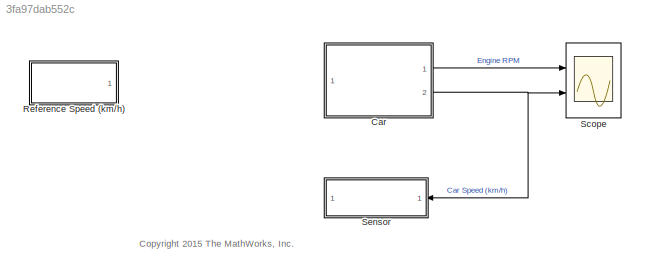
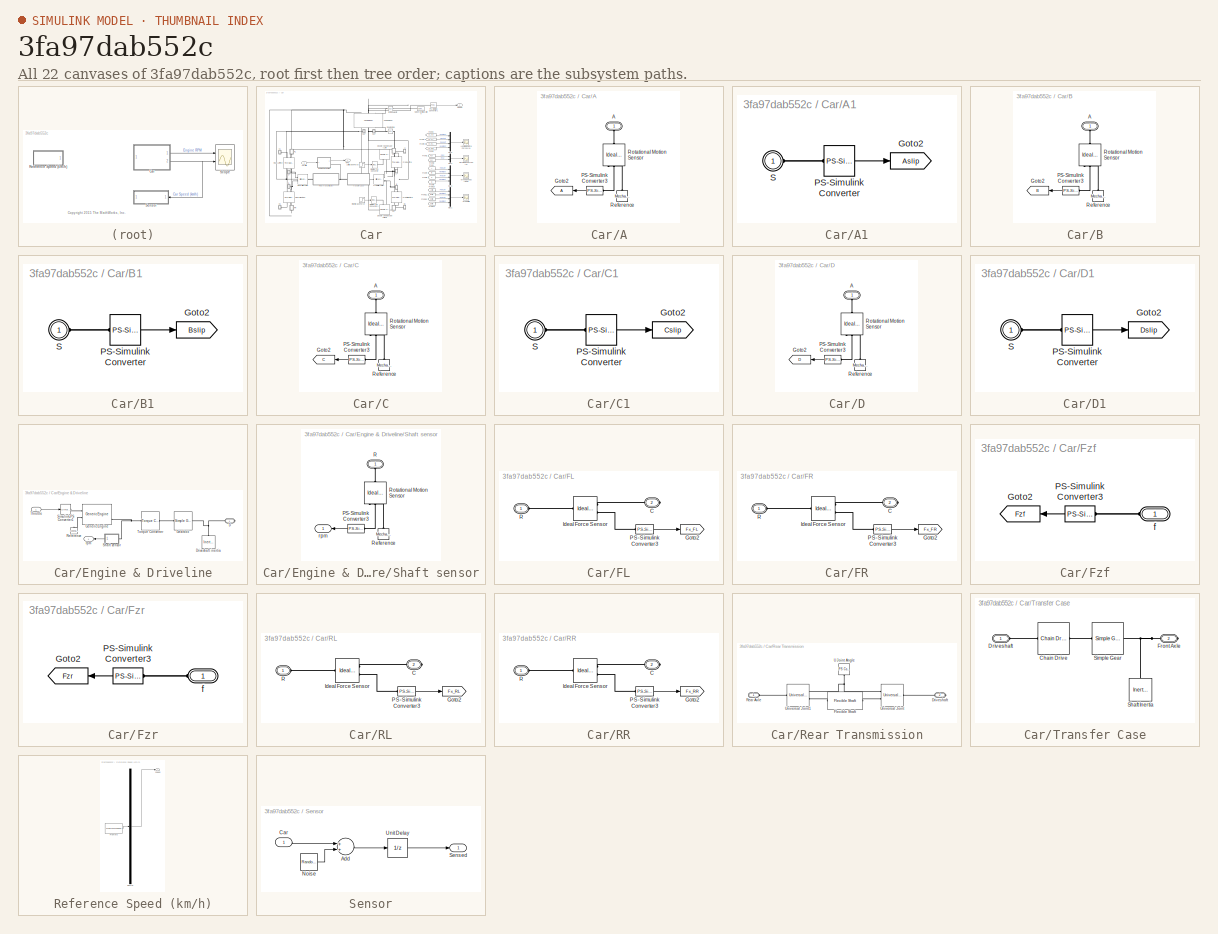
[diagram: thumbnail index - all 22 canvases of the model, root first then tree order]
MODEL slx_3fa97dab552c
KIND model
CONFIG AbsTol = 1e-3
CONFIG FixedStep = auto
CONFIG MaxStep = auto
CONFIG MinStep = auto
CONFIG RelTol = 1e-3
CONFIG SampleTimeConstraint = Unconstrained
CONFIG Solver = ode23t
CONFIG SolverMode = Auto
CONFIG SolverName = ode23t
CONFIG StartTime = 0.0
CONFIG StopTime = 30
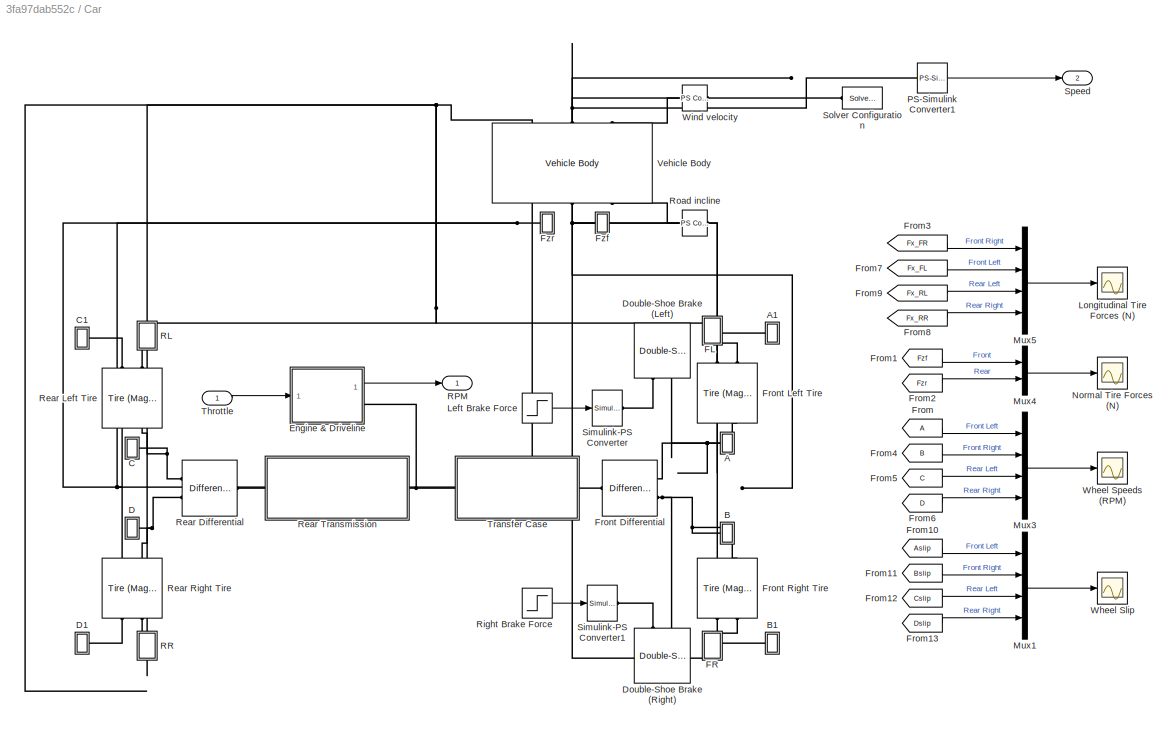
BLOCK [SubSystem] Car
  Ports = [1, 2]
  RequestExecContextInheritance = off
BLOCK [SubSystem] Car/A
  Ports = [0, 0, 0, 0, 0, 1]
  RequestExecContextInheritance = off
BLOCK [PMIOPort] Car/A/A
  Port = 1
  Side = Left
BLOCK [Goto] Car/A/Goto2
  TagVisibility = global
BLOCK [Reference] Car/A/PS-Simulink Converter3  REF=nesl_utility/PS-Simulink
Converter
  AffineConversion = off
  Frequencies = []
  LeftPortType = input
  PhysicalDomain = network_engine_domain
  Ports = [0, 1, 0, 0, 0, 1]
  PseudoPeriodic = off
  RightPortType = output
  SourceBlock = nesl_utility/PS-Simulink\nConverter
  SourceType = PS-Simulink\nConverter
  SubClassName = ps_output
  Unit = rpm
BLOCK [Reference] Car/A/Reference  REF=fl_lib/Mechanical/Rotational Elements/Mechanical
Rotational Reference
  ClassName = reference
  ComponentPath = foundation.mechanical.rotational.reference
  ComponentVariantNames = reference
  ComponentVariants = foundation.mechanical.rotational.reference
  LogSimulationData = off
  Ports = [0, 0, 0, 0, 0, 1]
  SchemaVersion = 1
  SourceBlock = fl_lib/Mechanical/Rotational Elements/Mechanical\nRotational Reference
  SourceFile = foundation.mechanical.rotational.reference
  SourceType = Mechanical\nRotational Reference
BLOCK [Reference] Car/A/Rotational Motion Sensor  REF=fl_lib/Mechanical/Mechanical Sensors/Ideal Rotational
Motion Sensor
  ClassName = angular_velocity
  ComponentPath = foundation.mechanical.sensors.angular_velocity
  ComponentVariantNames = angular_velocity
  ComponentVariants = foundation.mechanical.sensors.angular_velocity
  LogSimulationData = off
  Ports = [0, 0, 0, 0, 0, 1, 3]
  SchemaVersion = 1
  SourceBlock = fl_lib/Mechanical/Mechanical Sensors/Ideal Rotational\nMotion Sensor
  SourceFile = foundation.mechanical.sensors.angular_velocity
  SourceType = Ideal Rotational\nMotion Sensor
  offset = 0
  offset_unit = rad
BLOCK [SubSystem] Car/A1
  Ports = [0, 0, 0, 0, 0, 1]
  RequestExecContextInheritance = off
BLOCK [Goto] Car/A1/Goto2
  GotoTag = Aslip
  TagVisibility = global
BLOCK [Reference] Car/A1/PS-Simulink Converter  REF=nesl_utility/PS-Simulink
Converter
  AffineConversion = off
  Frequencies = []
  LeftPortType = input
  PhysicalDomain = network_engine_domain
  Ports = [0, 1, 0, 0, 0, 1]
  PseudoPeriodic = off
  RightPortType = output
  SourceBlock = nesl_utility/PS-Simulink\nConverter
  SourceType = PS-Simulink\nConverter
  SubClassName = ps_output
  Unit = 1
BLOCK [PMIOPort] Car/A1/S
  Port = 1
  Side = Left
BLOCK [SubSystem] Car/B
  Ports = [0, 0, 0, 0, 0, 1]
  RequestExecContextInheritance = off
BLOCK [PMIOPort] Car/B/A
  Port = 1
  Side = Left
BLOCK [Goto] Car/B/Goto2
  GotoTag = B
  TagVisibility = global
BLOCK [Reference] Car/B/PS-Simulink Converter3  REF=nesl_utility/PS-Simulink
Converter
  AffineConversion = off
  Frequencies = []
  LeftPortType = input
  PhysicalDomain = network_engine_domain
  Ports = [0, 1, 0, 0, 0, 1]
  PseudoPeriodic = off
  RightPortType = output
  SourceBlock = nesl_utility/PS-Simulink\nConverter
  SourceType = PS-Simulink\nConverter
  SubClassName = ps_output
  Unit = rpm
BLOCK [Reference] Car/B/Reference  REF=fl_lib/Mechanical/Rotational Elements/Mechanical
Rotational Reference
  ClassName = reference
  ComponentPath = foundation.mechanical.rotational.reference
  ComponentVariantNames = reference
  ComponentVariants = foundation.mechanical.rotational.reference
  LogSimulationData = off
  Ports = [0, 0, 0, 0, 0, 1]
  SchemaVersion = 1
  SourceBlock = fl_lib/Mechanical/Rotational Elements/Mechanical\nRotational Reference
  SourceFile = foundation.mechanical.rotational.reference
  SourceType = Mechanical\nRotational Reference
BLOCK [Reference] Car/B/Rotational Motion Sensor  REF=fl_lib/Mechanical/Mechanical Sensors/Ideal Rotational
Motion Sensor
  ClassName = angular_velocity
  ComponentPath = foundation.mechanical.sensors.angular_velocity
  ComponentVariantNames = angular_velocity
  ComponentVariants = foundation.mechanical.sensors.angular_velocity
  LogSimulationData = off
  Ports = [0, 0, 0, 0, 0, 1, 3]
  SchemaVersion = 1
  SourceBlock = fl_lib/Mechanical/Mechanical Sensors/Ideal Rotational\nMotion Sensor
  SourceFile = foundation.mechanical.sensors.angular_velocity
  SourceType = Ideal Rotational\nMotion Sensor
  offset = 0
  offset_unit = rad
BLOCK [SubSystem] Car/B1
  Ports = [0, 0, 0, 0, 0, 1]
  RequestExecContextInheritance = off
BLOCK [Goto] Car/B1/Goto2
  GotoTag = Bslip
  TagVisibility = global
BLOCK [Reference] Car/B1/PS-Simulink Converter  REF=nesl_utility/PS-Simulink
Converter
  AffineConversion = off
  Frequencies = []
  LeftPortType = input
  PhysicalDomain = network_engine_domain
  Ports = [0, 1, 0, 0, 0, 1]
  PseudoPeriodic = off
  RightPortType = output
  SourceBlock = nesl_utility/PS-Simulink\nConverter
  SourceType = PS-Simulink\nConverter
  SubClassName = ps_output
  Unit = 1
BLOCK [PMIOPort] Car/B1/S
  Port = 1
  Side = Left
BLOCK [SubSystem] Car/C
  Ports = [0, 0, 0, 0, 0, 1]
  RequestExecContextInheritance = off
BLOCK [PMIOPort] Car/C/A
  Port = 1
  Side = Left
BLOCK [Goto] Car/C/Goto2
  GotoTag = C
  TagVisibility = global
BLOCK [Reference] Car/C/PS-Simulink Converter3  REF=nesl_utility/PS-Simulink
Converter
  AffineConversion = off
  Frequencies = []
  LeftPortType = input
  PhysicalDomain = network_engine_domain
  Ports = [0, 1, 0, 0, 0, 1]
  PseudoPeriodic = off
  RightPortType = output
  SourceBlock = nesl_utility/PS-Simulink\nConverter
  SourceType = PS-Simulink\nConverter
  SubClassName = ps_output
  Unit = rpm
BLOCK [Reference] Car/C/Reference  REF=fl_lib/Mechanical/Rotational Elements/Mechanical
Rotational Reference
  ClassName = reference
  ComponentPath = foundation.mechanical.rotational.reference
  ComponentVariantNames = reference
  ComponentVariants = foundation.mechanical.rotational.reference
  LogSimulationData = off
  Ports = [0, 0, 0, 0, 0, 1]
  SchemaVersion = 1
  SourceBlock = fl_lib/Mechanical/Rotational Elements/Mechanical\nRotational Reference
  SourceFile = foundation.mechanical.rotational.reference
  SourceType = Mechanical\nRotational Reference
BLOCK [Reference] Car/C/Rotational Motion Sensor  REF=fl_lib/Mechanical/Mechanical Sensors/Ideal Rotational
Motion Sensor
  ClassName = angular_velocity
  ComponentPath = foundation.mechanical.sensors.angular_velocity
  ComponentVariantNames = angular_velocity
  ComponentVariants = foundation.mechanical.sensors.angular_velocity
  LogSimulationData = off
  Ports = [0, 0, 0, 0, 0, 1, 3]
  SchemaVersion = 1
  SourceBlock = fl_lib/Mechanical/Mechanical Sensors/Ideal Rotational\nMotion Sensor
  SourceFile = foundation.mechanical.sensors.angular_velocity
  SourceType = Ideal Rotational\nMotion Sensor
  offset = 0
  offset_unit = rad
BLOCK [SubSystem] Car/C1
  Ports = [0, 0, 0, 0, 0, 1]
  RequestExecContextInheritance = off
BLOCK [Goto] Car/C1/Goto2
  GotoTag = Cslip
  TagVisibility = global
BLOCK [Reference] Car/C1/PS-Simulink Converter  REF=nesl_utility/PS-Simulink
Converter
  AffineConversion = off
  Frequencies = []
  LeftPortType = input
  PhysicalDomain = network_engine_domain
  Ports = [0, 1, 0, 0, 0, 1]
  PseudoPeriodic = off
  RightPortType = output
  SourceBlock = nesl_utility/PS-Simulink\nConverter
  SourceType = PS-Simulink\nConverter
  SubClassName = ps_output
  Unit = 1
BLOCK [PMIOPort] Car/C1/S
  Port = 1
  Side = Left
BLOCK [SubSystem] Car/D
  Ports = [0, 0, 0, 0, 0, 1]
  RequestExecContextInheritance = off
BLOCK [PMIOPort] Car/D/A
  Port = 1
  Side = Left
BLOCK [Goto] Car/D/Goto2
  GotoTag = D
  TagVisibility = global
BLOCK [Reference] Car/D/PS-Simulink Converter3  REF=nesl_utility/PS-Simulink
Converter
  AffineConversion = off
  Frequencies = []
  LeftPortType = input
  PhysicalDomain = network_engine_domain
  Ports = [0, 1, 0, 0, 0, 1]
  PseudoPeriodic = off
  RightPortType = output
  SourceBlock = nesl_utility/PS-Simulink\nConverter
  SourceType = PS-Simulink\nConverter
  SubClassName = ps_output
  Unit = rpm
BLOCK [Reference] Car/D/Reference  REF=fl_lib/Mechanical/Rotational Elements/Mechanical
Rotational Reference
  ClassName = reference
  ComponentPath = foundation.mechanical.rotational.reference
  ComponentVariantNames = reference
  ComponentVariants = foundation.mechanical.rotational.reference
  LogSimulationData = off
  Ports = [0, 0, 0, 0, 0, 1]
  SchemaVersion = 1
  SourceBlock = fl_lib/Mechanical/Rotational Elements/Mechanical\nRotational Reference
  SourceFile = foundation.mechanical.rotational.reference
  SourceType = Mechanical\nRotational Reference
BLOCK [Reference] Car/D/Rotational Motion Sensor  REF=fl_lib/Mechanical/Mechanical Sensors/Ideal Rotational
Motion Sensor
  ClassName = angular_velocity
  ComponentPath = foundation.mechanical.sensors.angular_velocity
  ComponentVariantNames = angular_velocity
  ComponentVariants = foundation.mechanical.sensors.angular_velocity
  LogSimulationData = off
  Ports = [0, 0, 0, 0, 0, 1, 3]
  SchemaVersion = 1
  SourceBlock = fl_lib/Mechanical/Mechanical Sensors/Ideal Rotational\nMotion Sensor
  SourceFile = foundation.mechanical.sensors.angular_velocity
  SourceType = Ideal Rotational\nMotion Sensor
  offset = 0
  offset_unit = rad
BLOCK [SubSystem] Car/D1
  Ports = [0, 0, 0, 0, 0, 1]
  RequestExecContextInheritance = off
BLOCK [Goto] Car/D1/Goto2
  GotoTag = Dslip
  TagVisibility = global
BLOCK [Reference] Car/D1/PS-Simulink Converter  REF=nesl_utility/PS-Simulink
Converter
  AffineConversion = off
  Frequencies = []
  LeftPortType = input
  PhysicalDomain = network_engine_domain
  Ports = [0, 1, 0, 0, 0, 1]
  PseudoPeriodic = off
  RightPortType = output
  SourceBlock = nesl_utility/PS-Simulink\nConverter
  SourceType = PS-Simulink\nConverter
  SubClassName = ps_output
  Unit = 1
BLOCK [PMIOPort] Car/D1/S
  Port = 1
  Side = Left
BLOCK [Reference] Car/Double-Shoe Brake (Left)  REF=sdl_lib/Brakes & Detents/Rotational/Double-Shoe Brake
  ClassName = double_shoe_brake
  ComponentPath = sdl.brakes.rotational.double_shoe_brake
  ComponentVariantNames = double_shoe_brake
  ComponentVariants = sdl.brakes.rotational.double_shoe_brake
  LogSimulationData = off
  Ports = [0, 0, 0, 0, 0, 2]
  SchemaVersion = 1
  SourceBlock = sdl_lib/Brakes & Detents/Rotational/Double-Shoe Brake
  SourceFile = sdl.brakes.rotational.double_shoe_brake
  SourceType = Double-Shoe Brake
  mu = 0.3
  mu_unit = 1
  mu_visc = .01
  mu_visc_unit = N*m/(rad/s)
  r_act = 150
  r_act_unit = mm
  r_drum = 200
  r_drum_unit = mm
  r_pin = 125
  r_pin_unit = mm
  theta_0 = 5
  theta_0_unit = deg
  theta_pin = 15
  theta_pin_unit = deg
  theta_shoe = 120
  theta_shoe_unit = deg
  w_thr = 0.01
  w_thr_unit = rad/s
BLOCK [Reference] Car/Double-Shoe Brake (Right)  REF=sdl_lib/Brakes & Detents/Rotational/Double-Shoe Brake
  ClassName = double_shoe_brake
  ComponentPath = sdl.brakes.rotational.double_shoe_brake
  ComponentVariantNames = double_shoe_brake
  ComponentVariants = sdl.brakes.rotational.double_shoe_brake
  LogSimulationData = off
  Ports = [0, 0, 0, 0, 0, 2]
  SchemaVersion = 1
  SourceBlock = sdl_lib/Brakes & Detents/Rotational/Double-Shoe Brake
  SourceFile = sdl.brakes.rotational.double_shoe_brake
  SourceType = Double-Shoe Brake
  mu = 0.3
  mu_unit = 1
  mu_visc = .01
  mu_visc_unit = N*m/(rad/s)
  r_act = 150
  r_act_unit = mm
  r_drum = 200
  r_drum_unit = mm
  r_pin = 125
  r_pin_unit = mm
  theta_0 = 5
  theta_0_unit = deg
  theta_pin = 15
  theta_pin_unit = deg
  theta_shoe = 120
  theta_shoe_unit = deg
  w_thr = 0.01
  w_thr_unit = rad/s
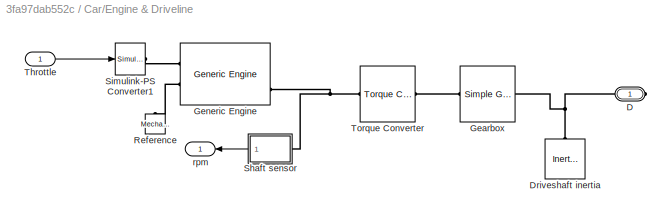
BLOCK [SubSystem] Car/Engine & Driveline
  Ports = [1, 1, 0, 0, 0, 0, 1]
  RequestExecContextInheritance = off
BLOCK [PMIOPort] Car/Engine & Driveline/D
  Port = 1
  Side = Right
BLOCK [Reference] Car/Engine & Driveline/Driveshaft inertia  REF=fl_lib/Mechanical/Rotational Elements/Inertia
  ClassName = inertia
  ComponentPath = foundation.mechanical.rotational.inertia
  ComponentVariantNames = inertia
  ComponentVariants = foundation.mechanical.rotational.inertia
  LogSimulationData = off
  Ports = [0, 0, 0, 0, 0, 1]
  SchemaVersion = 1
  SourceBlock = fl_lib/Mechanical/Rotational Elements/Inertia
  SourceFile = foundation.mechanical.rotational.inertia
  SourceType = Inertia
  inertia = 12
  inertia_unit = kg*m^2
  t = 0
  t_priority = High
  t_specify = off
  t_unit = N*m
  w = 0
  w_priority = High
  w_specify = off
  w_unit = rad/s
BLOCK [Reference] Car/Engine & Driveline/Gearbox  REF=sdl_lib/Gears/Simple Gear
  ClassName = simple_gear
  ComponentPath = sdl.gears.simple_gear
  ComponentVariantNames = No thermal port, Show thermal port
  ComponentVariants = sdl.gears.simple_gear, sdl.gears.simple_gear_th
  LogSimulationData = off
  Ports = [0, 0, 0, 0, 0, 1, 1]
  SchemaVersion = 1
  SourceBlock = sdl_lib/Gears/Simple Gear
  SourceFile = sdl.gears.simple_gear
  SourceType = Simple Gear
  T_init = 300
  T_init_unit = K
  T_noload = 0.1
  T_noload_unit = N*m
  T_nom = 5
  T_nom_unit = N*m
  efficiency = 0.8
  efficiency_TLU = [ 0.95 0.9 0.85 ]
  efficiency_TLU2 = [ 0.85 0.8 0.75; 0.95 0.9 0.85; 0.85 0.8 0.7 ]
  efficiency_TLU2_unit = 1
  efficiency_TLU_unit = 1
  efficiency_nom = 0.8
  efficiency_nom_unit = 1
  efficiency_unit = 1
  friction_model = 1
  friction_model_unit = 1
  load_TLU = [ 1 5 10 ]
  load_TLU_unit = N*m
  mu_visc = [ 0 0 ]
  mu_visc_unit = N*m/(rad/s)
  ratio = 2
  ratio_unit = 1
  rotation_direction = 1
  rotation_direction_unit = 1
  temperature_TLU = [ 280 300 320 ]
  temperature_TLU_unit = K
  thermal_mass = 50
  thermal_mass_unit = J/K
  w_thr = 0.01
  w_thr_unit = rad/s
BLOCK [Reference] Car/Engine & Driveline/Generic Engine  REF=sdl_lib/Engines/Generic Engine
  ClassName = generic_engine
  ComponentPath = sdl.engines.generic_engine
  ComponentVariantNames = generic_engine
  ComponentVariants = sdl.engines.generic_engine
  LogSimulationData = off
  P_max = 150e3
  P_max_unit = W
  Ports = [0, 0, 0, 0, 0, 2, 3]
  SchemaVersion = 1
  SourceBlock = sdl_lib/Engines/Generic Engine
  SourceFile = sdl.engines.generic_engine
  SourceType = Generic Engine
  T0 = 0
  T0_unit = 1
  bmep_tab = [ 0 250 500 625 750 1000 1.15e+3 1.25e+3 ]
  bmep_tab_unit = kPa
  bsfc_tab = [ 410 380 300 280 270 290 320 380; 410 370 290 270 260 270 285 320; 415 380 290 275 265 270 270 300; 420 390 310 290 285 280 280 285; 430 410 340 320 310 300 310 320; 450 430 370 340 330 330 350 380 ]
  bsfc_tab_unit = g/hr/kW
  displaced_volume = 400
  displaced_volume_unit = cm^3
  engine_type = 1
  engine_type_unit = 1
  fc_interp_method = 1
  fc_interp_method_unit = 1
  fc_model = 1
  fc_model_unit = 1
  fc_per_rev = 25
  fc_per_rev_unit = mg/rev
  fc_tab = [ 0.5 0.9 1.4 1.6 1.9 2.7 3.4 4.4; 1 1.7 2.7 3.1 3.6 5 6 7.4; 1.4 2.7 4 4.8 5.6 7.5 8.5 10.5; 2 3.6 5.8 6.7 8 10.4 11.7 13.3; 2.5 4.8 7.9 9.4 10.8 14 16.2 18.6; 3.1 6 10.3 11.9 13.8 18.4 22 26.5 ]
  fc_tab_unit = g/s
  fc_trq_tab = [ 0 80 160 200 240 320 360 400 ]
  fc_trq_tab_unit = N*m
  fc_w_tab = [ 1000 2e+3 3e+3 4e+3 5e+3 6e+3 ]
  fc_w_tab_unit = rpm
  idle_speed = 0
  idle_speed_reference = 1000
  idle_speed_reference_unit = rpm
  idle_speed_unit = 1
  idle_w_thr = 1
  idle_w_thr_unit = rpm
  inertia = 0.2
  inertia_unit = kg*m^2
  initial_velocity = 800
  initial_velocity_unit = rpm
  interp_method = 1
  interp_method_unit = 1
  model_inertia = 1
  model_inertia_unit = 1
  model_parameterization = 1
  model_parameterization_unit = 1
  model_time_constant = 0
  model_time_constant_unit = 1
  pwr_tab = [ 2e+4 4e+4 7.8e+4 1.2e+5 1.45e+5 1.48e+5 1.25e+5 6e+4 ]
  pwr_tab_unit = W
  rev_per_cycle = 2
  rev_per_cycle_unit = 1
  tau_controller = 1
  tau_controller_unit = s
  time_constant = 0.2
  time_constant_unit = s
  trq_tab = [ 380 380 380 380 350 280 200 80 ]
  trq_tab_unit = N*m
  w_P_max = 4500
  w_P_max_unit = rpm
  w_max = 6000
  w_max_unit = rpm
  w_min = 500
  w_min_unit = rpm
  w_tab = [ 500 1000 2e+3 3e+3 4e+3 5e+3 6e+3 7e+3 ]
  w_tab_unit = rpm
  w_thr = 100
  w_thr_unit = rpm
BLOCK [Reference] Car/Engine & Driveline/Reference  REF=fl_lib/Mechanical/Rotational Elements/Mechanical
Rotational Reference
  ClassName = reference
  ComponentPath = foundation.mechanical.rotational.reference
  ComponentVariantNames = reference
  ComponentVariants = foundation.mechanical.rotational.reference
  LogSimulationData = off
  Ports = [0, 0, 0, 0, 0, 1]
  SchemaVersion = 1
  SourceBlock = fl_lib/Mechanical/Rotational Elements/Mechanical\nRotational Reference
  SourceFile = foundation.mechanical.rotational.reference
  SourceType = Mechanical\nRotational Reference
BLOCK [SubSystem] Car/Engine & Driveline/Shaft sensor
  Ports = [0, 1, 0, 0, 0, 1]
  RequestExecContextInheritance = off
BLOCK [Reference] Car/Engine & Driveline/Shaft sensor/PS-Simulink Converter3  REF=nesl_utility/PS-Simulink
Converter
  AffineConversion = off
  Frequencies = []
  LeftPortType = input
  PhysicalDomain = network_engine_domain
  Ports = [0, 1, 0, 0, 0, 1]
  PseudoPeriodic = off
  RightPortType = output
  SourceBlock = nesl_utility/PS-Simulink\nConverter
  SourceType = PS-Simulink\nConverter
  SubClassName = ps_output
  Unit = rpm
BLOCK [PMIOPort] Car/Engine & Driveline/Shaft sensor/R
  Port = 1
  Side = Left
BLOCK [Reference] Car/Engine & Driveline/Shaft sensor/Reference  REF=fl_lib/Mechanical/Rotational Elements/Mechanical
Rotational Reference
  ClassName = reference
  ComponentPath = foundation.mechanical.rotational.reference
  ComponentVariantNames = reference
  ComponentVariants = foundation.mechanical.rotational.reference
  LogSimulationData = off
  Ports = [0, 0, 0, 0, 0, 1]
  SchemaVersion = 1
  SourceBlock = fl_lib/Mechanical/Rotational Elements/Mechanical\nRotational Reference
  SourceFile = foundation.mechanical.rotational.reference
  SourceType = Mechanical\nRotational Reference
BLOCK [Reference] Car/Engine & Driveline/Shaft sensor/Rotational Motion Sensor  REF=fl_lib/Mechanical/Mechanical Sensors/Ideal Rotational
Motion Sensor
  ClassName = angular_velocity
  ComponentPath = foundation.mechanical.sensors.angular_velocity
  ComponentVariantNames = angular_velocity
  ComponentVariants = foundation.mechanical.sensors.angular_velocity
  LogSimulationData = off
  Ports = [0, 0, 0, 0, 0, 1, 3]
  SchemaVersion = 1
  SourceBlock = fl_lib/Mechanical/Mechanical Sensors/Ideal Rotational\nMotion Sensor
  SourceFile = foundation.mechanical.sensors.angular_velocity
  SourceType = Ideal Rotational\nMotion Sensor
  offset = 0
  offset_unit = rad
BLOCK [Outport] Car/Engine & Driveline/Shaft sensor/rpm
  IconDisplay = Port number
BLOCK [Reference] Car/Engine & Driveline/Simulink-PS Converter1  REF=nesl_utility/Simulink-PS
Converter
  AffineConversion = off
  Frequencies = []
  InputFilterTimeConstant = .001
  InputFiltering = off
  LeftPortType = input
  NoiseDistribution = none
  NoiseParameters = []
  PhysicalDomain = network_engine_domain
  Ports = [1, 0, 0, 0, 0, 0, 1]
  PseudoPeriodic = off
  RightPortType = output
  SimscapeFilterOrder = 1
  SourceBlock = nesl_utility/Simulink-PS\nConverter
  SourceType = Simulink-PS\nConverter
  SubClassName = ps_input
  UdotUserProvided = 0
  Unit = 1
BLOCK [Inport] Car/Engine & Driveline/Throttle
  IconDisplay = Port number
BLOCK [Reference] Car/Engine & Driveline/Torque Converter  REF=sdl_lib/Couplings & Drives/Torque Converter
  ClassName = torque_converter
  ComponentPath = sdl.couplings.torque_converter
  ComponentVariantNames = torque_converter
  ComponentVariants = sdl.couplings.torque_converter
  LogSimulationData = off
  Ports = [0, 0, 0, 0, 0, 1, 1]
  SchemaVersion = 1
  SourceBlock = sdl_lib/Couplings & Drives/Torque Converter
  SourceFile = sdl.couplings.torque_converter
  SourceType = Torque Converter
  cf_vector = [12.2938 12.8588 13.1452 13.6285 14.6163 16.2675 19.3503 22.1046 29.9986 50.00]
  cf_vector_parameterization = 1
  cf_vector_parameterization_unit = 1
  cf_vector_reference_speed = 1
  cf_vector_reference_speed_unit = 1
  cf_vector_sq = 1e-3*[ 6.616 6.048 5.787 5.384 4.681 3.779 2.671 2.047 1.111 0.400]
  cf_vector_sq_unit = N*m/(rad/s)^2
  cf_vector_unit = (rad/s)/(N*m)^0.5
  extrap_method = 1
  extrap_method_unit = 1
  initial_trq_ratio = 0
  initial_trq_ratio_unit = 1
  interp_method = 1
  interp_method_unit = 1
  model_lag = 0
  model_lag_unit = 1
  n_vector = [0 0.50 0.60 0.70 0.80 0.87 0.92 0.94 0.96 0.97]
  n_vector_unit = 1
  tau = 0.02
  tau_unit = s
  trq_vector = [2.2320 1.5462 1.4058 1.2746 1.1528 1.0732 1.0192 0.9983 0.9983 0.9983]
  trq_vector_unit = 1
BLOCK [Outport] Car/Engine & Driveline/rpm
  IconDisplay = Port number
BLOCK [SubSystem] Car/FL
  Ports = [0, 0, 0, 0, 0, 1, 1]
  RequestExecContextInheritance = off
BLOCK [PMIOPort] Car/FL/C
  Port = 2
  Side = Right
BLOCK [Goto] Car/FL/Goto2
  GotoTag = Fx_FL
  TagVisibility = global
BLOCK [Reference] Car/FL/Ideal Force Sensor  REF=fl_lib/Mechanical/Mechanical Sensors/Ideal Force Sensor
  ClassName = force
  ComponentPath = foundation.mechanical.sensors.force
  ComponentVariantNames = force
  ComponentVariants = foundation.mechanical.sensors.force
  LogSimulationData = off
  Ports = [0, 0, 0, 0, 0, 1, 2]
  SchemaVersion = 1
  SourceBlock = fl_lib/Mechanical/Mechanical Sensors/Ideal Force Sensor
  SourceFile = foundation.mechanical.sensors.force
  SourceType = Ideal Force Sensor
BLOCK [Reference] Car/FL/PS-Simulink Converter3  REF=nesl_utility/PS-Simulink
Converter
  AffineConversion = off
  Frequencies = []
  LeftPortType = input
  PhysicalDomain = network_engine_domain
  Ports = [0, 1, 0, 0, 0, 1]
  PseudoPeriodic = off
  RightPortType = output
  SourceBlock = nesl_utility/PS-Simulink\nConverter
  SourceType = PS-Simulink\nConverter
  SubClassName = ps_output
  Unit = N
BLOCK [PMIOPort] Car/FL/R
  Port = 1
  Side = Left
BLOCK [SubSystem] Car/FR
  Ports = [0, 0, 0, 0, 0, 1, 1]
  RequestExecContextInheritance = off
BLOCK [PMIOPort] Car/FR/C
  Port = 2
  Side = Right
BLOCK [Goto] Car/FR/Goto2
  GotoTag = Fx_FR
  TagVisibility = global
BLOCK [Reference] Car/FR/Ideal Force Sensor  REF=fl_lib/Mechanical/Mechanical Sensors/Ideal Force Sensor
  ClassName = force
  ComponentPath = foundation.mechanical.sensors.force
  ComponentVariantNames = force
  ComponentVariants = foundation.mechanical.sensors.force
  LogSimulationData = off
  Ports = [0, 0, 0, 0, 0, 1, 2]
  SchemaVersion = 1
  SourceBlock = fl_lib/Mechanical/Mechanical Sensors/Ideal Force Sensor
  SourceFile = foundation.mechanical.sensors.force
  SourceType = Ideal Force Sensor
BLOCK [Reference] Car/FR/PS-Simulink Converter3  REF=nesl_utility/PS-Simulink
Converter
  AffineConversion = off
  Frequencies = []
  LeftPortType = input
  PhysicalDomain = network_engine_domain
  Ports = [0, 1, 0, 0, 0, 1]
  PseudoPeriodic = off
  RightPortType = output
  SourceBlock = nesl_utility/PS-Simulink\nConverter
  SourceType = PS-Simulink\nConverter
  SubClassName = ps_output
  Unit = N
BLOCK [PMIOPort] Car/FR/R
  Port = 1
  Side = Left
BLOCK [From] Car/From
  CloseFcn = tagdialog Close
  TagVisibility = global
BLOCK [From] Car/From1
  CloseFcn = tagdialog Close
  GotoTag = Fzf
  TagVisibility = global
BLOCK [From] Car/From10
  CloseFcn = tagdialog Close
  GotoTag = Aslip
  TagVisibility = global
BLOCK [From] Car/From11
  CloseFcn = tagdialog Close
  GotoTag = Bslip
  TagVisibility = global
BLOCK [From] Car/From12
  CloseFcn = tagdialog Close
  GotoTag = Cslip
  TagVisibility = global
BLOCK [From] Car/From13
  CloseFcn = tagdialog Close
  GotoTag = Dslip
  TagVisibility = global
BLOCK [From] Car/From2
  CloseFcn = tagdialog Close
  GotoTag = Fzr
  TagVisibility = global
BLOCK [From] Car/From3
  CloseFcn = tagdialog Close
  GotoTag = Fx_FR
  TagVisibility = global
BLOCK [From] Car/From4
  CloseFcn = tagdialog Close
  GotoTag = B
  TagVisibility = global
BLOCK [From] Car/From5
  CloseFcn = tagdialog Close
  GotoTag = C
  TagVisibility = global
BLOCK [From] Car/From6
  CloseFcn = tagdialog Close
  GotoTag = D
  TagVisibility = global
BLOCK [From] Car/From7
  CloseFcn = tagdialog Close
  GotoTag = Fx_FL
  TagVisibility = global
BLOCK [From] Car/From8
  CloseFcn = tagdialog Close
  GotoTag = Fx_RR
  TagVisibility = global
BLOCK [From] Car/From9
  CloseFcn = tagdialog Close
  GotoTag = Fx_RL
  TagVisibility = global
BLOCK [Reference] Car/Front Differential  REF=sdl_lib/Gears/Differential
  ClassName = differential
  ComponentPath = sdl.gears.differential
  ComponentVariantNames = No thermal port, Show thermal port
  ComponentVariants = sdl.gears.differential, sdl.gears.differential_th
  LogSimulationData = off
  Ports = [0, 0, 0, 0, 0, 1, 2]
  SchemaVersion = 1
  SourceBlock = sdl_lib/Gears/Differential
  SourceFile = sdl.gears.differential
  SourceType = Differential
  T_init = 300
  T_init_unit = K
  cd_ratio = 4
  cd_ratio_unit = 1
  driveshaft_location = 2
  driveshaft_location_unit = 1
  efficiency = [ 0.85 0.92 ]
  efficiency_cd_TLU = [ 0.95 0.9 0.85 ]
  efficiency_cd_TLU_unit = 1
  efficiency_ss_TLU = [ 0.95 0.9 0.85 ]
  efficiency_ss_TLU_unit = 1
  efficiency_unit = 1
  friction_model = 1
  friction_model_unit = 1
  mu_visc = [ 0 0 ]
  mu_visc_unit = N*m/(rad/s)
  temperature_TLU = [ 280 300 320 ]
  temperature_TLU_unit = K
  thermal_mass = 50
  thermal_mass_unit = J/K
  w_thr = [ 0.01 0.01 ]
  w_thr_unit = rad/s
BLOCK [Reference] Car/Front Left Tire  REF=sdl_lib/Tires & Vehicles/Tire (Magic Formula)
  B_m = 10
  B_m_unit = 1
  C_m = 1.9
  C_m_unit = 1
  ClassName = tire_magic
  ComponentPath = sdl.tires.tire_magic
  ComponentVariantNames = tire_magic
  ComponentVariants = sdl.tires.tire_magic
  D_m = 1
  D_m_unit = 1
  E_m = 0.97
  E_m_unit = 1
  F_x1 = 3500
  F_x1_unit = N
  F_z1 = 3000
  F_z1_unit = N
  LogSimulationData = off
  Ports = [0, 0, 0, 0, 0, 2, 2]
  SchemaVersion = 1
  SourceBlock = sdl_lib/Tires & Vehicles/Tire (Magic Formula)
  SourceFile = sdl.tires.tire_magic
  SourceType = Tire (Magic Formula)
  alpha = -0.003
  alpha_unit = 1
  beta = 0.97
  beta_unit = 1
  coeff = 0.015
  coeff_a = 84e-4
  coeff_a_unit = 1
  coeff_b = 6.2e-4
  coeff_b_unit = s/m
  coeff_c = 1.6e-4
  coeff_c_unit = s^2/m^2
  coeff_unit = 1
  damping = 1000
  damping_unit = N/(m/s)
  fz0 = 4e+3
  fz0_unit = N
  inertia = 4.129
  inertia_unit = kg*m^2
  initial_velocity = 0
  initial_velocity_unit = rpm
  kappa1 = 10
  kappa1_unit = 1
  model_compliance = 1
  model_compliance_unit = 1
  model_inertia = 1
  model_inertia_unit = 1
  model_resistance = 1
  model_resistance_unit = 1
  p_Cx = 1.685
  p_Cx_unit = 1
  p_Dx = [ 1.21 -0.037 ]
  p_Dx_unit = 1
  p_Ex = [ 0.344 0.095 -0.02 0 ]
  p_Ex_unit = 1
  p_Hx = [ -0.002 0.002 ]
  p_Hx_unit = 1
  p_Kx = [ 21.51 -0.163 0.245 ]
  p_Kx_unit = 1
  p_Vx = [ 0 0 ]
  p_Vx_unit = 1
  p_tire = 250e3
  p_tire_unit = Pa
  parameterization = 1
  parameterization_unit = 1
  r_e = 16*2.54/100
  r_e_unit = m
  resistance_model = 1
  resistance_model_unit = 1
  stiffness = 200000
  stiffness_unit = N/m
  v_thr = 1e-3
  v_thr_unit = m/s
  v_tr_thr = 0.1
  v_tr_thr_unit = m/s
BLOCK [Reference] Car/Front Right Tire  REF=sdl_lib/Tires & Vehicles/Tire (Magic Formula)
  B_m = 10
  B_m_unit = 1
  C_m = 1.9
  C_m_unit = 1
  ClassName = tire_magic
  ComponentPath = sdl.tires.tire_magic
  ComponentVariantNames = tire_magic
  ComponentVariants = sdl.tires.tire_magic
  D_m = 1
  D_m_unit = 1
  E_m = 0.97
  E_m_unit = 1
  F_x1 = 3500
  F_x1_unit = N
  F_z1 = 3000
  F_z1_unit = N
  LogSimulationData = off
  Ports = [0, 0, 0, 0, 0, 2, 2]
  SchemaVersion = 1
  SourceBlock = sdl_lib/Tires & Vehicles/Tire (Magic Formula)
  SourceFile = sdl.tires.tire_magic
  SourceType = Tire (Magic Formula)
  alpha = -0.003
  alpha_unit = 1
  beta = 0.97
  beta_unit = 1
  coeff = 0.015
  coeff_a = 84e-4
  coeff_a_unit = 1
  coeff_b = 6.2e-4
  coeff_b_unit = s/m
  coeff_c = 1.6e-4
  coeff_c_unit = s^2/m^2
  coeff_unit = 1
  damping = 1000
  damping_unit = N/(m/s)
  fz0 = 4e+3
  fz0_unit = N
  inertia = 4.129
  inertia_unit = kg*m^2
  initial_velocity = 0
  initial_velocity_unit = rpm
  kappa1 = 10
  kappa1_unit = 1
  model_compliance = 1
  model_compliance_unit = 1
  model_inertia = 1
  model_inertia_unit = 1
  model_resistance = 1
  model_resistance_unit = 1
  p_Cx = 1.685
  p_Cx_unit = 1
  p_Dx = [ 1.21 -0.037 ]
  p_Dx_unit = 1
  p_Ex = [ 0.344 0.095 -0.02 0 ]
  p_Ex_unit = 1
  p_Hx = [ -0.002 0.002 ]
  p_Hx_unit = 1
  p_Kx = [ 21.51 -0.163 0.245 ]
  p_Kx_unit = 1
  p_Vx = [ 0 0 ]
  p_Vx_unit = 1
  p_tire = 250e3
  p_tire_unit = Pa
  parameterization = 1
  parameterization_unit = 1
  r_e = 16*2.54/100
  r_e_unit = m
  resistance_model = 1
  resistance_model_unit = 1
  stiffness = 200000
  stiffness_unit = N/m
  v_thr = 1e-3
  v_thr_unit = m/s
  v_tr_thr = 0.1
  v_tr_thr_unit = m/s
BLOCK [SubSystem] Car/Fzf
  Ports = [0, 0, 0, 0, 0, 1]
  RequestExecContextInheritance = off
BLOCK [Goto] Car/Fzf/Goto2
  GotoTag = Fzf
  TagVisibility = global
BLOCK [Reference] Car/Fzf/PS-Simulink Converter3  REF=nesl_utility/PS-Simulink
Converter
  AffineConversion = off
  Frequencies = []
  LeftPortType = input
  PhysicalDomain = network_engine_domain
  Ports = [0, 1, 0, 0, 0, 1]
  PseudoPeriodic = off
  RightPortType = output
  SourceBlock = nesl_utility/PS-Simulink\nConverter
  SourceType = PS-Simulink\nConverter
  SubClassName = ps_output
  Unit = N
BLOCK [PMIOPort] Car/Fzf/f
  Port = 1
  Side = Left
BLOCK [SubSystem] Car/Fzr
  Ports = [0, 0, 0, 0, 0, 1]
  RequestExecContextInheritance = off
BLOCK [Goto] Car/Fzr/Goto2
  GotoTag = Fzr
  TagVisibility = global
BLOCK [Reference] Car/Fzr/PS-Simulink Converter3  REF=nesl_utility/PS-Simulink
Converter
  AffineConversion = off
  Frequencies = []
  LeftPortType = input
  PhysicalDomain = network_engine_domain
  Ports = [0, 1, 0, 0, 0, 1]
  PseudoPeriodic = off
  RightPortType = output
  SourceBlock = nesl_utility/PS-Simulink\nConverter
  SourceType = PS-Simulink\nConverter
  SubClassName = ps_output
  Unit = N
BLOCK [PMIOPort] Car/Fzr/f
  Port = 1
  Side = Left
BLOCK [Step] Car/Left Brake Force
  After = 1000
  AttributesFormatString = Brake on @ %<Time> s
  SampleTime = 0
  Time = 40
BLOCK [Scope] Car/Longitudinal Tire Forces (N)
  DataFormat = StructureWithTime
  Floating = off
  LegendLocations = 0.79598     0.81239     0.20036     0.12089
  LimitDataPoints = off
  NumInputPorts = 1
  Ports = [1]
  SampleTime = 0
  SaveName = ScopeData4
  ShowLegends = on
  TimeRange = 30
  YMax = 3000
  YMin = -500
  ZoomMode = yonly
BLOCK [Mux] Car/Mux1
  DisplayOption = bar
  Ports = [4, 1]
BLOCK [Mux] Car/Mux3
  DisplayOption = bar
  Ports = [4, 1]
BLOCK [Mux] Car/Mux4
  DisplayOption = bar
  Inputs = 2
  Ports = [2, 1]
BLOCK [Mux] Car/Mux5
  DisplayOption = bar
  Ports = [4, 1]
BLOCK [Scope] Car/Normal Tire Forces (N)
  DataFormat = StructureWithTime
  Floating = off
  LegendLocations = 0.7979     0.86116     0.14775    0.068311
  LimitDataPoints = off
  NumInputPorts = 1
  Ports = [1]
  SampleTime = 0
  SaveName = ScopeData2
  ShowLegends = on
  TimeRange = 30
  YMax = 3900
  YMin = 3200
BLOCK [Reference] Car/PS-Simulink Converter1  REF=nesl_utility/PS-Simulink
Converter
  AffineConversion = off
  Frequencies = []
  LeftPortType = input
  PhysicalDomain = network_engine_domain
  Ports = [0, 1, 0, 0, 0, 1]
  PseudoPeriodic = off
  RightPortType = output
  SourceBlock = nesl_utility/PS-Simulink\nConverter
  SourceType = PS-Simulink\nConverter
  SubClassName = ps_output
  Unit = km/hr
BLOCK [SubSystem] Car/RL
  Ports = [0, 0, 0, 0, 0, 1, 1]
  RequestExecContextInheritance = off
BLOCK [PMIOPort] Car/RL/C
  Port = 2
  Side = Right
BLOCK [Goto] Car/RL/Goto2
  GotoTag = Fx_RL
  TagVisibility = global
BLOCK [Reference] Car/RL/Ideal Force Sensor  REF=fl_lib/Mechanical/Mechanical Sensors/Ideal Force Sensor
  ClassName = force
  ComponentPath = foundation.mechanical.sensors.force
  ComponentVariantNames = force
  ComponentVariants = foundation.mechanical.sensors.force
  LogSimulationData = off
  Ports = [0, 0, 0, 0, 0, 1, 2]
  SchemaVersion = 1
  SourceBlock = fl_lib/Mechanical/Mechanical Sensors/Ideal Force Sensor
  SourceFile = foundation.mechanical.sensors.force
  SourceType = Ideal Force Sensor
BLOCK [Reference] Car/RL/PS-Simulink Converter3  REF=nesl_utility/PS-Simulink
Converter
  AffineConversion = off
  Frequencies = []
  LeftPortType = input
  PhysicalDomain = network_engine_domain
  Ports = [0, 1, 0, 0, 0, 1]
  PseudoPeriodic = off
  RightPortType = output
  SourceBlock = nesl_utility/PS-Simulink\nConverter
  SourceType = PS-Simulink\nConverter
  SubClassName = ps_output
  Unit = N
BLOCK [PMIOPort] Car/RL/R
  Port = 1
  Side = Left
BLOCK [Outport] Car/RPM
  IconDisplay = Port number
BLOCK [SubSystem] Car/RR
  Ports = [0, 0, 0, 0, 0, 1, 1]
  RequestExecContextInheritance = off
BLOCK [PMIOPort] Car/RR/C
  Port = 2
  Side = Right
BLOCK [Goto] Car/RR/Goto2
  GotoTag = Fx_RR
  TagVisibility = global
BLOCK [Reference] Car/RR/Ideal Force Sensor  REF=fl_lib/Mechanical/Mechanical Sensors/Ideal Force Sensor
  ClassName = force
  ComponentPath = foundation.mechanical.sensors.force
  ComponentVariantNames = force
  ComponentVariants = foundation.mechanical.sensors.force
  LogSimulationData = off
  Ports = [0, 0, 0, 0, 0, 1, 2]
  SchemaVersion = 1
  SourceBlock = fl_lib/Mechanical/Mechanical Sensors/Ideal Force Sensor
  SourceFile = foundation.mechanical.sensors.force
  SourceType = Ideal Force Sensor
BLOCK [Reference] Car/RR/PS-Simulink Converter3  REF=nesl_utility/PS-Simulink
Converter
  AffineConversion = off
  Frequencies = []
  LeftPortType = input
  PhysicalDomain = network_engine_domain
  Ports = [0, 1, 0, 0, 0, 1]
  PseudoPeriodic = off
  RightPortType = output
  SourceBlock = nesl_utility/PS-Simulink\nConverter
  SourceType = PS-Simulink\nConverter
  SubClassName = ps_output
  Unit = N
BLOCK [PMIOPort] Car/RR/R
  Port = 1
  Side = Left
BLOCK [Reference] Car/Rear Differential  REF=sdl_lib/Gears/Differential
  ClassName = differential
  ComponentPath = sdl.gears.differential
  ComponentVariantNames = No thermal port, Show thermal port
  ComponentVariants = sdl.gears.differential, sdl.gears.differential_th
  LogSimulationData = off
  Ports = [0, 0, 0, 0, 0, 1, 2]
  SchemaVersion = 1
  SourceBlock = sdl_lib/Gears/Differential
  SourceFile = sdl.gears.differential
  SourceType = Differential
  T_init = 300
  T_init_unit = K
  cd_ratio = 4
  cd_ratio_unit = 1
  driveshaft_location = 2
  driveshaft_location_unit = 1
  efficiency = [ 0.85 0.92 ]
  efficiency_cd_TLU = [ 0.95 0.9 0.85 ]
  efficiency_cd_TLU_unit = 1
  efficiency_ss_TLU = [ 0.95 0.9 0.85 ]
  efficiency_ss_TLU_unit = 1
  efficiency_unit = 1
  friction_model = 1
  friction_model_unit = 1
  mu_visc = [ 0 0 ]
  mu_visc_unit = N*m/(rad/s)
  temperature_TLU = [ 280 300 320 ]
  temperature_TLU_unit = K
  thermal_mass = 50
  thermal_mass_unit = J/K
  w_thr = [ 0.01 0.01 ]
  w_thr_unit = rad/s
BLOCK [Reference] Car/Rear Left Tire  REF=sdl_lib/Tires & Vehicles/Tire (Magic Formula)
  B_m = 10
  B_m_unit = 1
  C_m = 1.9
  C_m_unit = 1
  ClassName = tire_magic
  ComponentPath = sdl.tires.tire_magic
  ComponentVariantNames = tire_magic
  ComponentVariants = sdl.tires.tire_magic
  D_m = 1
  D_m_unit = 1
  E_m = 0.97
  E_m_unit = 1
  F_x1 = 3500
  F_x1_unit = N
  F_z1 = 3000
  F_z1_unit = N
  LogSimulationData = off
  Ports = [0, 0, 0, 0, 0, 2, 2]
  SchemaVersion = 1
  SourceBlock = sdl_lib/Tires & Vehicles/Tire (Magic Formula)
  SourceFile = sdl.tires.tire_magic
  SourceType = Tire (Magic Formula)
  alpha = -0.003
  alpha_unit = 1
  beta = 0.97
  beta_unit = 1
  coeff = 0.015
  coeff_a = 84e-4
  coeff_a_unit = 1
  coeff_b = 6.2e-4
  coeff_b_unit = s/m
  coeff_c = 1.6e-4
  coeff_c_unit = s^2/m^2
  coeff_unit = 1
  damping = 1000
  damping_unit = N/(m/s)
  fz0 = 4e+3
  fz0_unit = N
  inertia = 4.129
  inertia_unit = kg*m^2
  initial_velocity = 0
  initial_velocity_unit = rpm
  kappa1 = 10
  kappa1_unit = 1
  model_compliance = 1
  model_compliance_unit = 1
  model_inertia = 1
  model_inertia_unit = 1
  model_resistance = 1
  model_resistance_unit = 1
  p_Cx = 1.685
  p_Cx_unit = 1
  p_Dx = [ 1.21 -0.037 ]
  p_Dx_unit = 1
  p_Ex = [ 0.344 0.095 -0.02 0 ]
  p_Ex_unit = 1
  p_Hx = [ -0.002 0.002 ]
  p_Hx_unit = 1
  p_Kx = [ 21.51 -0.163 0.245 ]
  p_Kx_unit = 1
  p_Vx = [ 0 0 ]
  p_Vx_unit = 1
  p_tire = 250e3
  p_tire_unit = Pa
  parameterization = 1
  parameterization_unit = 1
  r_e = 16*2.54/100
  r_e_unit = m
  resistance_model = 1
  resistance_model_unit = 1
  stiffness = 200000
  stiffness_unit = N/m
  v_thr = 1e-3
  v_thr_unit = m/s
  v_tr_thr = 0.1
  v_tr_thr_unit = m/s
BLOCK [Reference] Car/Rear Right Tire  REF=sdl_lib/Tires & Vehicles/Tire (Magic Formula)
  B_m = 10
  B_m_unit = 1
  C_m = 1.9
  C_m_unit = 1
  ClassName = tire_magic
  ComponentPath = sdl.tires.tire_magic
  ComponentVariantNames = tire_magic
  ComponentVariants = sdl.tires.tire_magic
  D_m = 1
  D_m_unit = 1
  E_m = 0.97
  E_m_unit = 1
  F_x1 = 3500
  F_x1_unit = N
  F_z1 = 3000
  F_z1_unit = N
  LogSimulationData = off
  Ports = [0, 0, 0, 0, 0, 2, 2]
  SchemaVersion = 1
  SourceBlock = sdl_lib/Tires & Vehicles/Tire (Magic Formula)
  SourceFile = sdl.tires.tire_magic
  SourceType = Tire (Magic Formula)
  alpha = -0.003
  alpha_unit = 1
  beta = 0.97
  beta_unit = 1
  coeff = 0.015
  coeff_a = 84e-4
  coeff_a_unit = 1
  coeff_b = 6.2e-4
  coeff_b_unit = s/m
  coeff_c = 1.6e-4
  coeff_c_unit = s^2/m^2
  coeff_unit = 1
  damping = 1000
  damping_unit = N/(m/s)
  fz0 = 4e+3
  fz0_unit = N
  inertia = 4.129
  inertia_unit = kg*m^2
  initial_velocity = 0
  initial_velocity_unit = rpm
  kappa1 = 10
  kappa1_unit = 1
  model_compliance = 1
  model_compliance_unit = 1
  model_inertia = 1
  model_inertia_unit = 1
  model_resistance = 1
  model_resistance_unit = 1
  p_Cx = 1.685
  p_Cx_unit = 1
  p_Dx = [ 1.21 -0.037 ]
  p_Dx_unit = 1
  p_Ex = [ 0.344 0.095 -0.02 0 ]
  p_Ex_unit = 1
  p_Hx = [ -0.002 0.002 ]
  p_Hx_unit = 1
  p_Kx = [ 21.51 -0.163 0.245 ]
  p_Kx_unit = 1
  p_Vx = [ 0 0 ]
  p_Vx_unit = 1
  p_tire = 250e3
  p_tire_unit = Pa
  parameterization = 1
  parameterization_unit = 1
  r_e = 16*2.54/100
  r_e_unit = m
  resistance_model = 1
  resistance_model_unit = 1
  stiffness = 200000
  stiffness_unit = N/m
  v_thr = 1e-3
  v_thr_unit = m/s
  v_tr_thr = 0.1
  v_tr_thr_unit = m/s
BLOCK [SubSystem] Car/Rear Transmission
  Ports = [0, 0, 0, 0, 0, 1, 1]
  RequestExecContextInheritance = off
BLOCK [PMIOPort] Car/Rear Transmission/Driveshaft
  Port = 2
  Side = Right
BLOCK [Reference] Car/Rear Transmission/Flexible Shaft  REF=sdl_lib/Couplings & Drives/Flexible Shaft
  ClassName = flexible_shaft
  ComponentPath = sdl.couplings.flexible_shaft
  ComponentVariantNames = flexible_shaft
  ComponentVariants = sdl.couplings.flexible_shaft
  LogSimulationData = off
  Ports = [0, 0, 0, 0, 0, 1, 1]
  SchemaVersion = 1
  SourceBlock = sdl_lib/Couplings & Drives/Flexible Shaft
  SourceFile = sdl.couplings.flexible_shaft
  SourceType = Flexible Shaft
  damping_ratio = 0.2
  damping_ratio_unit = 1
  density = 7.8e+3
  density_unit = kg/m^3
  diameter_inner = 0.05
  diameter_inner_unit = m
  diameter_outer = 0.075
  diameter_outer_unit = m
  initial_deflection = 0
  initial_deflection_unit = rad
  initial_velocity = 0
  initial_velocity_unit = rpm
  length = 1
  length_unit = m
  mu_visc = [ 0 0 ]
  mu_visc_unit = N*m/(rad/s)
  n_segments = 1
  n_segments_unit = 1
  parameterization = 1
  parameterization_unit = 1
  shaft_construction = 1
  shaft_construction_unit = 1
  shaft_inertia = 0.02
  shaft_inertia_unit = kg*m^2
  shaft_stiffness = 1e6
  shaft_stiffness_unit = N*m/rad
  shear_modulus = 7.93e+10
  shear_modulus_unit = Pa
BLOCK [PMIOPort] Car/Rear Transmission/Rear Axle
  Port = 1
  Side = Left
BLOCK [Reference] Car/Rear Transmission/U Joint Angle  REF=fl_lib/Physical Signals/Sources/PS Constant
  ClassName = constant
  ComponentPath = foundation.physical_signal.sources.constant
  ComponentVariantNames = constant
  ComponentVariants = foundation.physical_signal.sources.constant
  LogSimulationData = off
  Ports = [0, 0, 0, 0, 0, 0, 1]
  SchemaVersion = 1
  SourceBlock = fl_lib/Physical Signals/Sources/PS Constant
  SourceFile = foundation.physical_signal.sources.constant
  SourceType = PS Constant
  constant = 15*pi/180
  constant_unit = 1
BLOCK [Reference] Car/Rear Transmission/Universal Joint  REF=sdl_lib/Couplings & Drives/Universal Joint
  Amax = pi / 4
  Amax_unit = rad
  ClassName = universal_joint
  ComponentPath = sdl.couplings.universal_joint
  ComponentVariantNames = universal_joint
  ComponentVariants = sdl.couplings.universal_joint
  LogSimulationData = off
  Ports = [0, 0, 0, 0, 0, 2, 1]
  SchemaVersion = 1
  SourceBlock = sdl_lib/Couplings & Drives/Universal Joint
  SourceFile = sdl.couplings.universal_joint
  SourceType = Universal Joint
  b = 1e3
  b_unit = N*m/(rad/s)
  k = 1e6
  k_unit = N*m/rad
  t0 = 0
  t0_unit = N*m
  thetaB0 = 0
  thetaB0_unit = rad
BLOCK [Reference] Car/Rear Transmission/Universal Joint1  REF=sdl_lib/Couplings & Drives/Universal Joint
  Amax = pi / 4
  Amax_unit = rad
  ClassName = universal_joint
  ComponentPath = sdl.couplings.universal_joint
  ComponentVariantNames = universal_joint
  ComponentVariants = sdl.couplings.universal_joint
  LogSimulationData = off
  Ports = [0, 0, 0, 0, 0, 2, 1]
  SchemaVersion = 1
  SourceBlock = sdl_lib/Couplings & Drives/Universal Joint
  SourceFile = sdl.couplings.universal_joint
  SourceType = Universal Joint
  b = 1e3
  b_unit = N*m/(rad/s)
  k = 1e6
  k_unit = N*m/rad
  t0 = 0
  t0_unit = N*m
  thetaB0 = 0
  thetaB0_unit = rad
BLOCK [Step] Car/Right Brake Force
  After = 1000
  AttributesFormatString = Brake on @ %<Time> s
  SampleTime = 0
  Time = 40
BLOCK [Reference] Car/Road incline  REF=fl_lib/Physical Signals/Sources/PS Constant
  ClassName = constant
  ComponentPath = foundation.physical_signal.sources.constant
  ComponentVariantNames = constant
  ComponentVariants = foundation.physical_signal.sources.constant
  LogSimulationData = off
  Ports = [0, 0, 0, 0, 0, 0, 1]
  SchemaVersion = 1
  SourceBlock = fl_lib/Physical Signals/Sources/PS Constant
  SourceFile = foundation.physical_signal.sources.constant
  SourceType = PS Constant
  constant = pi*15/180
  constant_unit = 1
BLOCK [Reference] Car/Simulink-PS Converter  REF=nesl_utility/Simulink-PS
Converter
  AffineConversion = off
  Frequencies = []
  InputFilterTimeConstant = 0.001
  InputFiltering = off
  LeftPortType = input
  NoiseDistribution = none
  NoiseParameters = []
  PhysicalDomain = network_engine_domain
  Ports = [1, 0, 0, 0, 0, 0, 1]
  PseudoPeriodic = off
  RightPortType = output
  SimscapeFilterOrder = 1
  SourceBlock = nesl_utility/Simulink-PS\nConverter
  SourceType = Simulink-PS\nConverter
  SubClassName = ps_input
  UdotUserProvided = 1
  Unit = 1
BLOCK [Reference] Car/Simulink-PS Converter1  REF=nesl_utility/Simulink-PS
Converter
  AffineConversion = off
  Frequencies = []
  InputFilterTimeConstant = 0.001
  InputFiltering = off
  LeftPortType = input
  NoiseDistribution = none
  NoiseParameters = []
  PhysicalDomain = network_engine_domain
  Ports = [1, 0, 0, 0, 0, 0, 1]
  PseudoPeriodic = off
  RightPortType = output
  SimscapeFilterOrder = 1
  SourceBlock = nesl_utility/Simulink-PS\nConverter
  SourceType = Simulink-PS\nConverter
  SubClassName = ps_input
  UdotUserProvided = 1
  Unit = 1
BLOCK [Reference] Car/Solver Configuration  REF=nesl_utility/Solver
Configuration
  AbsTol = 1e-06
  Accelerate = off
  AutomaticFiltering = on
  DelaysMemoryBudget = 1024
  DoDC = off
  DoFixedCost = off
  EnableSwitchedLinearOptims = on
  FilteringTimeConstant = 0.001
  FrequencyDomain = off
  Harmonics = []
  LeftPortType = input
  LinearAlgebra = Sparse
  LocalSolverChoice = NE_BACKWARD_EULER_ADVANCER
  LocalSolverSampleTime = 0.1
  MaxModeIter = 2
  MaxNonlinIter = 3
  MinStep = 1e-09
  NumHomotopyIterations = 100
  PhysicalDomain = network_engine_domain
  Ports = [0, 0, 0, 0, 0, 0, 1]
  Profile = off
  RelTol = 0.001
  ResidualTolerance = 1e-9
  RevertToSquareIcSolve = off
  RightPortType = generic
  SimulateNoise = off
  SourceBlock = nesl_utility/Solver\nConfiguration
  SourceType = Solver\nConfiguration
  SubClassName = solver
  ToWorkspace = off
  Tones = []
  UseCCode = off
  UseLocalSampling = off
  UseLocalSolver = off
BLOCK [Outport] Car/Speed
  IconDisplay = Port number
  Port = 2
BLOCK [Inport] Car/Throttle
  IconDisplay = Port number
BLOCK [SubSystem] Car/Transfer Case
  Ports = [0, 0, 0, 0, 0, 1, 1]
  RequestExecContextInheritance = off
BLOCK [Reference] Car/Transfer Case/Chain Drive  REF=sdl_lib/Couplings & Drives/Chain Drive
  ClassName = chain_drive
  ComponentPath = sdl.couplings.chain_drive
  ComponentVariantNames = chain_drive
  ComponentVariants = sdl.couplings.chain_drive
  F_max = 1e+6
  F_max_unit = N
  LogSimulationData = off
  Ports = [0, 0, 0, 0, 0, 1, 1]
  SchemaVersion = 1
  SourceBlock = sdl_lib/Couplings & Drives/Chain Drive
  SourceFile = sdl.couplings.chain_drive
  SourceType = Chain Drive
  breakable = 0
  breakable_unit = 1
  initial_displacement = 0
  initial_displacement_unit = mm
  k_chain = 1e+5
  k_chain_unit = N/m
  mu_visc_a = 0.001
  mu_visc_a_unit = N*m/(rad/s)
  mu_visc_b = 0.001
  mu_visc_b_unit = N*m/(rad/s)
  mu_visc_chain = 5
  mu_visc_chain_unit = N/(m/s)
  radius_a = 80
  radius_a_unit = mm
  radius_b = 40
  radius_b_unit = mm
  slack = 50
  slack_unit = mm
BLOCK [PMIOPort] Car/Transfer Case/Driveshaft
  Port = 1
  Side = Left
BLOCK [PMIOPort] Car/Transfer Case/Front Axle
  Port = 2
  Side = Right
BLOCK [Reference] Car/Transfer Case/Shaft Inertia  REF=fl_lib/Mechanical/Rotational Elements/Inertia
  ClassName = inertia
  ComponentPath = foundation.mechanical.rotational.inertia
  ComponentVariantNames = inertia
  ComponentVariants = foundation.mechanical.rotational.inertia
  LogSimulationData = off
  Ports = [0, 0, 0, 0, 0, 1]
  SchemaVersion = 1
  SourceBlock = fl_lib/Mechanical/Rotational Elements/Inertia
  SourceFile = foundation.mechanical.rotational.inertia
  SourceType = Inertia
  inertia = 0.01
  inertia_unit = kg*m^2
  t = 0
  t_priority = High
  t_specify = off
  t_unit = N*m
  w = 0
  w_priority = High
  w_specify = off
  w_unit = rad/s
BLOCK [Reference] Car/Transfer Case/Simple Gear  REF=sdl_lib/Gears/Simple Gear
  ClassName = simple_gear
  ComponentPath = sdl.gears.simple_gear
  ComponentVariantNames = No thermal port, Show thermal port
  ComponentVariants = sdl.gears.simple_gear, sdl.gears.simple_gear_th
  LogSimulationData = off
  Ports = [0, 0, 0, 0, 0, 1, 1]
  SchemaVersion = 1
  SourceBlock = sdl_lib/Gears/Simple Gear
  SourceFile = sdl.gears.simple_gear
  SourceType = Simple Gear
  T_init = 300
  T_init_unit = K
  T_noload = 0.1
  T_noload_unit = N*m
  T_nom = 5
  T_nom_unit = N*m
  efficiency = 0.8
  efficiency_TLU = [ 0.95 0.9 0.85 ]
  efficiency_TLU2 = [ 0.85 0.8 0.75; 0.95 0.9 0.85; 0.85 0.8 0.7 ]
  efficiency_TLU2_unit = 1
  efficiency_TLU_unit = 1
  efficiency_nom = 0.8
  efficiency_nom_unit = 1
  efficiency_unit = 1
  friction_model = 1
  friction_model_unit = 1
  load_TLU = [ 1 5 10 ]
  load_TLU_unit = N*m
  mu_visc = [ 0 0 ]
  mu_visc_unit = N*m/(rad/s)
  ratio = 2
  ratio_unit = 1
  rotation_direction = 1
  rotation_direction_unit = 1
  temperature_TLU = [ 280 300 320 ]
  temperature_TLU_unit = K
  thermal_mass = 50
  thermal_mass_unit = J/K
  w_thr = 0.01
  w_thr_unit = rad/s
BLOCK [Reference] Car/Vehicle Body  REF=sdl_lib/Tires & Vehicles/Vehicle Body
  Cd = 0.4
  Cd_unit = 1
  ClassName = vehicle_body
  ComponentPath = sdl.tires.vehicle_body
  ComponentVariantNames = vehicle_body
  ComponentVariants = sdl.tires.vehicle_body
  LogSimulationData = off
  Ports = [0, 0, 0, 0, 0, 3, 3]
  SchemaVersion = 1
  SourceBlock = sdl_lib/Tires & Vehicles/Vehicle Body
  SourceFile = sdl.tires.vehicle_body
  SourceType = Vehicle Body
  area = 3
  area_unit = m^2
  g = 9.81
  g_unit = m/s^2
  mass = 1500
  mass_unit = kg
  n_w = 2
  n_w_unit = 1
  rho = 1.18
  rho_unit = kg/m^3
  v0 = 0
  v0_unit = m/s
  x_f = 1.4
  x_f_unit = m
  x_r = 1.6
  x_r_unit = m
  y_c = 0.5
  y_c_unit = m
BLOCK [Scope] Car/Wheel Slip
  DataFormat = StructureWithTime
  Floating = off
  LegendLocations = 0.71336     0.77233     0.22495      0.1467
  LimitDataPoints = off
  NumInputPorts = 1
  Ports = [1]
  SampleTime = 0
  ShowLegends = on
  TimeRange = 30
  YMax = 0.03
  YMin = -0.005
  ZoomMode = xonly
BLOCK [Scope] Car/Wheel Speeds (RPM)
  DataFormat = StructureWithTime
  Floating = off
  LegendLocations = 0.73801     0.78717     0.20561     0.13714
  LimitDataPoints = off
  NumInputPorts = 1
  Ports = [1]
  SampleTime = 0
  SaveName = ScopeData1
  ShowLegends = on
  TimeRange = 30
  YMax = 140
  YMin = -20
  ZoomMode = xonly
BLOCK [Reference] Car/Wind velocity  REF=fl_lib/Physical Signals/Sources/PS Constant
  ClassName = constant
  ComponentPath = foundation.physical_signal.sources.constant
  ComponentVariantNames = constant
  ComponentVariants = foundation.physical_signal.sources.constant
  LogSimulationData = off
  Ports = [0, 0, 0, 0, 0, 0, 1]
  SchemaVersion = 1
  SourceBlock = fl_lib/Physical Signals/Sources/PS Constant
  SourceFile = foundation.physical_signal.sources.constant
  SourceType = PS Constant
  constant = 0
  constant_unit = 1
BLOCK [SubSystem] Reference Speed (km//h)
  ClipboardFcn = sigbuilder_block('clipboard');
  CloseFcn = sigbuilder_block('close');
  ContinueFcn = sigbuilder_block('continue');
  CopyFcn = sigbuilder_block('copy');
  DeleteFcn = sigbuilder_block('delete');
  LoadFcn = sigbuilder_block('load');
  MaskHideContents = on
  ModelCloseFcn = sigbuilder_block('modelClose');
  NameChangeFcn = sigbuilder_block('namechange');
  OpenFcn = sigbuilder_block('open',[437.25 199.5 550.5 399.75 ]);
  PauseFcn = sigbuilder_block('pause');
  Ports = [0, 1]
  PreSaveFcn = sigbuilder_block('preSave');
  RequestExecContextInheritance = off
  StartFcn = sigbuilder_block('start');
  StopFcn = sigbuilder_block('stop');
  Tag = STV Subsys
BLOCK [Demux] Reference Speed (km//h)/Demux
  Outputs = 1
  Ports = [1, 1]
  Tag = STV Demux
BLOCK [FromWorkspace] Reference Speed (km//h)/FromWs
  SampleTime = 0
  Tag = STV FromWs
  VariableName = tuvar
  ZeroCross = on
BLOCK [Outport] Reference Speed (km//h)/speed
  IconDisplay = Port number
  Tag = STV Outport
BLOCK [Scope] Scope
  DataFormat = StructureWithTime
  Floating = off
  LimitDataPoints = off
  NumInputPorts = 2
  Ports = [2]
  SampleTime = 0
  SaveName = ScopeData3
  TimeRange = 30
  YMax = 800~-7.9037e-83
  YMin = 0~-70
  ZoomMode = yonly
BLOCK [SubSystem] Sensor
  Ports = [1, 1]
  RequestExecContextInheritance = off
BLOCK [Sum] Sensor/Add
  InputSameDT = off
  OutDataTypeStr = Inherit: Inherit via internal rule
  Ports = [2, 1]
  SaturateOnIntegerOverflow = off
BLOCK [Inport] Sensor/Car
  IconDisplay = Port number
BLOCK [RandomNumber] Sensor/Noise
  SampleTime = 0.1
  Variance = 0.01
BLOCK [Outport] Sensor/Sensed
  IconDisplay = Port number
BLOCK [UnitDelay] Sensor/Unit Delay
  InputProcessing = Elements as channels (sample based)
  SampleTime = 0.1
ANNOTATION (root): <copyright redacted>
LINE Car/A/PS-Simulink Converter3:1 -> Car/A/Goto2:1
LINE Car/A1/PS-Simulink Converter:1 -> Car/A1/Goto2:1
LINE Car/B/PS-Simulink Converter3:1 -> Car/B/Goto2:1
LINE Car/B1/PS-Simulink Converter:1 -> Car/B1/Goto2:1
LINE Car/C/PS-Simulink Converter3:1 -> Car/C/Goto2:1
LINE Car/C1/PS-Simulink Converter:1 -> Car/C1/Goto2:1
LINE Car/D/PS-Simulink Converter3:1 -> Car/D/Goto2:1
LINE Car/D1/PS-Simulink Converter:1 -> Car/D1/Goto2:1
LINE Car/Engine & Driveline/Shaft sensor/PS-Simulink Converter3:1 -> Car/Engine & Driveline/Shaft sensor/rpm:1
LINE Car/Engine & Driveline/Shaft sensor:1 -> Car/Engine & Driveline/rpm:1
LINE Car/Engine & Driveline/Throttle:1 -> Car/Engine & Driveline/Simulink-PS Converter1:1
LINE Car/Engine & Driveline:1 -> Car/RPM:1
LINE Car/FL/PS-Simulink Converter3:1 -> Car/FL/Goto2:1
LINE Car/FR/PS-Simulink Converter3:1 -> Car/FR/Goto2:1
LINE Car/From10:1 -> Car/Mux1:1
LINE Car/From11:1 -> Car/Mux1:2
LINE Car/From12:1 -> Car/Mux1:3
LINE Car/From13:1 -> Car/Mux1:4
LINE Car/From1:1 -> Car/Mux4:1
LINE Car/From2:1 -> Car/Mux4:2
LINE Car/From3:1 -> Car/Mux5:1
LINE Car/From4:1 -> Car/Mux3:2
LINE Car/From5:1 -> Car/Mux3:3
LINE Car/From6:1 -> Car/Mux3:4
LINE Car/From7:1 -> Car/Mux5:2
LINE Car/From8:1 -> Car/Mux5:4
LINE Car/From9:1 -> Car/Mux5:3
LINE Car/From:1 -> Car/Mux3:1
LINE Car/Fzf/PS-Simulink Converter3:1 -> Car/Fzf/Goto2:1
LINE Car/Fzr/PS-Simulink Converter3:1 -> Car/Fzr/Goto2:1
LINE Car/Left Brake Force:1 -> Car/Simulink-PS Converter:1
LINE Car/Mux1:1 -> Car/Wheel Slip:1
LINE Car/Mux3:1 -> Car/Wheel Speeds (RPM):1
LINE Car/Mux4:1 -> Car/Normal Tire Forces (N):1
LINE Car/Mux5:1 -> Car/Longitudinal Tire Forces (N):1
LINE Car/PS-Simulink Converter1:1 -> Car/Speed:1
LINE Car/RL/PS-Simulink Converter3:1 -> Car/RL/Goto2:1
LINE Car/RR/PS-Simulink Converter3:1 -> Car/RR/Goto2:1
LINE Car/Right Brake Force:1 -> Car/Simulink-PS Converter1:1
LINE Car/Throttle:1 -> Car/Engine & Driveline:1
LINE Car:1 -> Scope:1
NET Car:2 -> Scope:2, Sensor:1
LINE Sensor/Add:1 -> Sensor/Unit Delay:1
LINE Sensor/Car:1 -> Sensor/Add:1
LINE Sensor/Noise:1 -> Sensor/Add:2
LINE Sensor/Unit Delay:1 -> Sensor/Sensed:1
PLINE Car/A/A:RConn1 -- Car/A/Rotational Motion Sensor:LConn1
PLINE Car/A/PS-Simulink Converter3:LConn1 -- Car/A/Rotational Motion Sensor:RConn2
PLINE Car/A/Reference:LConn1 -- Car/A/Rotational Motion Sensor:RConn1
PLINE Car/A1/PS-Simulink Converter:LConn1 -- Car/A1/S:RConn1
PLINE Car/A1:LConn1 -- Car/Front Left Tire:RConn1
PNET net1: Car/A:LConn1 -- Car/Double-Shoe Brake (Left):LConn2 -- Car/Front Differential:RConn1 -- Car/Front Left Tire:LConn2
PLINE Car/B/A:RConn1 -- Car/B/Rotational Motion Sensor:LConn1
PLINE Car/B/PS-Simulink Converter3:LConn1 -- Car/B/Rotational Motion Sensor:RConn2
PLINE Car/B/Reference:LConn1 -- Car/B/Rotational Motion Sensor:RConn1
PLINE Car/B1/PS-Simulink Converter:LConn1 -- Car/B1/S:RConn1
PLINE Car/B1:LConn1 -- Car/Front Right Tire:RConn1
PNET net2: Car/B:LConn1 -- Car/Double-Shoe Brake (Right):LConn2 -- Car/Front Differential:RConn2 -- Car/Front Right Tire:LConn2
PLINE Car/C/A:RConn1 -- Car/C/Rotational Motion Sensor:LConn1
PLINE Car/C/PS-Simulink Converter3:LConn1 -- Car/C/Rotational Motion Sensor:RConn2
PLINE Car/C/Reference:LConn1 -- Car/C/Rotational Motion Sensor:RConn1
PLINE Car/C1/PS-Simulink Converter:LConn1 -- Car/C1/S:RConn1
PLINE Car/C1:LConn1 -- Car/Rear Left Tire:RConn1
PNET net3: Car/C:LConn1 -- Car/Rear Differential:RConn1 -- Car/Rear Left Tire:LConn2
PLINE Car/D/A:RConn1 -- Car/D/Rotational Motion Sensor:LConn1
PLINE Car/D/PS-Simulink Converter3:LConn1 -- Car/D/Rotational Motion Sensor:RConn2
PLINE Car/D/Reference:LConn1 -- Car/D/Rotational Motion Sensor:RConn1
PLINE Car/D1/PS-Simulink Converter:LConn1 -- Car/D1/S:RConn1
PLINE Car/D1:LConn1 -- Car/Rear Right Tire:RConn1
PNET net4: Car/D:LConn1 -- Car/Rear Differential:RConn2 -- Car/Rear Right Tire:LConn2
PLINE Car/Double-Shoe Brake (Left):LConn1 -- Car/Simulink-PS Converter:RConn1
PLINE Car/Double-Shoe Brake (Right):LConn1 -- Car/Simulink-PS Converter1:RConn1
PNET net5: Car/Engine & Driveline/D:RConn1 -- Car/Engine & Driveline/Driveshaft inertia:LConn1 -- Car/Engine & Driveline/Gearbox:RConn1
PLINE Car/Engine & Driveline/Gearbox:LConn1 -- Car/Engine & Driveline/Torque Converter:RConn1
PLINE Car/Engine & Driveline/Generic Engine:LConn1 -- Car/Engine & Driveline/Simulink-PS Converter1:RConn1
PLINE Car/Engine & Driveline/Generic Engine:LConn2 -- Car/Engine & Driveline/Reference:LConn1
PNET net6: Car/Engine & Driveline/Generic Engine:RConn3 -- Car/Engine & Driveline/Shaft sensor:LConn1 -- Car/Engine & Driveline/Torque Converter:LConn1
PLINE Car/Engine & Driveline/Shaft sensor/PS-Simulink Converter3:LConn1 -- Car/Engine & Driveline/Shaft sensor/Rotational Motion Sensor:RConn2
PLINE Car/Engine & Driveline/Shaft sensor/R:RConn1 -- Car/Engine & Driveline/Shaft sensor/Rotational Motion Sensor:LConn1
PLINE Car/Engine & Driveline/Shaft sensor/Reference:LConn1 -- Car/Engine & Driveline/Shaft sensor/Rotational Motion Sensor:RConn1
PNET net7: Car/Engine & Driveline:RConn1 -- Car/Rear Transmission:RConn1 -- Car/Transfer Case:LConn1
PLINE Car/FL/C:RConn1 -- Car/FL/Ideal Force Sensor:RConn1
PLINE Car/FL/Ideal Force Sensor:LConn1 -- Car/FL/R:RConn1
PLINE Car/FL/Ideal Force Sensor:RConn2 -- Car/FL/PS-Simulink Converter3:LConn1
PLINE Car/FL:LConn1 -- Car/Front Left Tire:RConn2
PNET net8: Car/FL:RConn1 -- Car/FR:RConn1 -- Car/RL:RConn1 -- Car/RR:RConn1 -- Car/Vehicle Body:LConn1
PLINE Car/FR/C:RConn1 -- Car/FR/Ideal Force Sensor:RConn1
PLINE Car/FR/Ideal Force Sensor:LConn1 -- Car/FR/R:RConn1
PLINE Car/FR/Ideal Force Sensor:RConn2 -- Car/FR/PS-Simulink Converter3:LConn1
PLINE Car/FR:LConn1 -- Car/Front Right Tire:RConn2
PLINE Car/Front Differential:LConn1 -- Car/Transfer Case:RConn1
PNET net9: Car/Front Left Tire:LConn1 -- Car/Front Right Tire:LConn1 -- Car/Fzf:LConn1 -- Car/Vehicle Body:RConn2
PLINE Car/Fzf/PS-Simulink Converter3:LConn1 -- Car/Fzf/f:RConn1
PLINE Car/Fzr/PS-Simulink Converter3:LConn1 -- Car/Fzr/f:RConn1
PNET net10: Car/Fzr:LConn1 -- Car/Rear Left Tire:LConn1 -- Car/Rear Right Tire:LConn1 -- Car/Vehicle Body:RConn1
PNET net11: Car/PS-Simulink Converter1:LConn1 -- Car/Solver Configuration:RConn1 -- Car/Vehicle Body:LConn2
PLINE Car/RL/C:RConn1 -- Car/RL/Ideal Force Sensor:RConn1
PLINE Car/RL/Ideal Force Sensor:LConn1 -- Car/RL/R:RConn1
PLINE Car/RL/Ideal Force Sensor:RConn2 -- Car/RL/PS-Simulink Converter3:LConn1
PLINE Car/RL:LConn1 -- Car/Rear Left Tire:RConn2
PLINE Car/RR/C:RConn1 -- Car/RR/Ideal Force Sensor:RConn1
PLINE Car/RR/Ideal Force Sensor:LConn1 -- Car/RR/R:RConn1
PLINE Car/RR/Ideal Force Sensor:RConn2 -- Car/RR/PS-Simulink Converter3:LConn1
PLINE Car/RR:LConn1 -- Car/Rear Right Tire:RConn2
PLINE Car/Rear Differential:LConn1 -- Car/Rear Transmission:LConn1
PLINE Car/Rear Transmission/Driveshaft:RConn1 -- Car/Rear Transmission/Universal Joint:RConn1
PLINE Car/Rear Transmission/Flexible Shaft:LConn1 -- Car/Rear Transmission/Universal Joint1:LConn2
PLINE Car/Rear Transmission/Flexible Shaft:RConn1 -- Car/Rear Transmission/Universal Joint:LConn2
PLINE Car/Rear Transmission/Rear Axle:RConn1 -- Car/Rear Transmission/Universal Joint1:RConn1
PNET net12: Car/Rear Transmission/U Joint Angle:RConn1 -- Car/Rear Transmission/Universal Joint1:LConn1 -- Car/Rear Transmission/Universal Joint:LConn1
PLINE Car/Road incline:RConn1 -- Car/Vehicle Body:RConn3
PLINE Car/Transfer Case/Chain Drive:LConn1 -- Car/Transfer Case/Driveshaft:RConn1
PLINE Car/Transfer Case/Chain Drive:RConn1 -- Car/Transfer Case/Simple Gear:LConn1
PNET net13: Car/Transfer Case/Front Axle:RConn1 -- Car/Transfer Case/Shaft Inertia:LConn1 -- Car/Transfer Case/Simple Gear:RConn1
PLINE Car/Vehicle Body:LConn3 -- Car/Wind velocity:RConn1
note: NET lines group one-source signal fan-out (src -> all destinations, sorted); 1:1 wires keep LINE; PNET lines group multi-terminal physical nets as a canonical sorted terminal list (undirected conserving connections); 2-terminal nets keep the pairwise PLINE form
